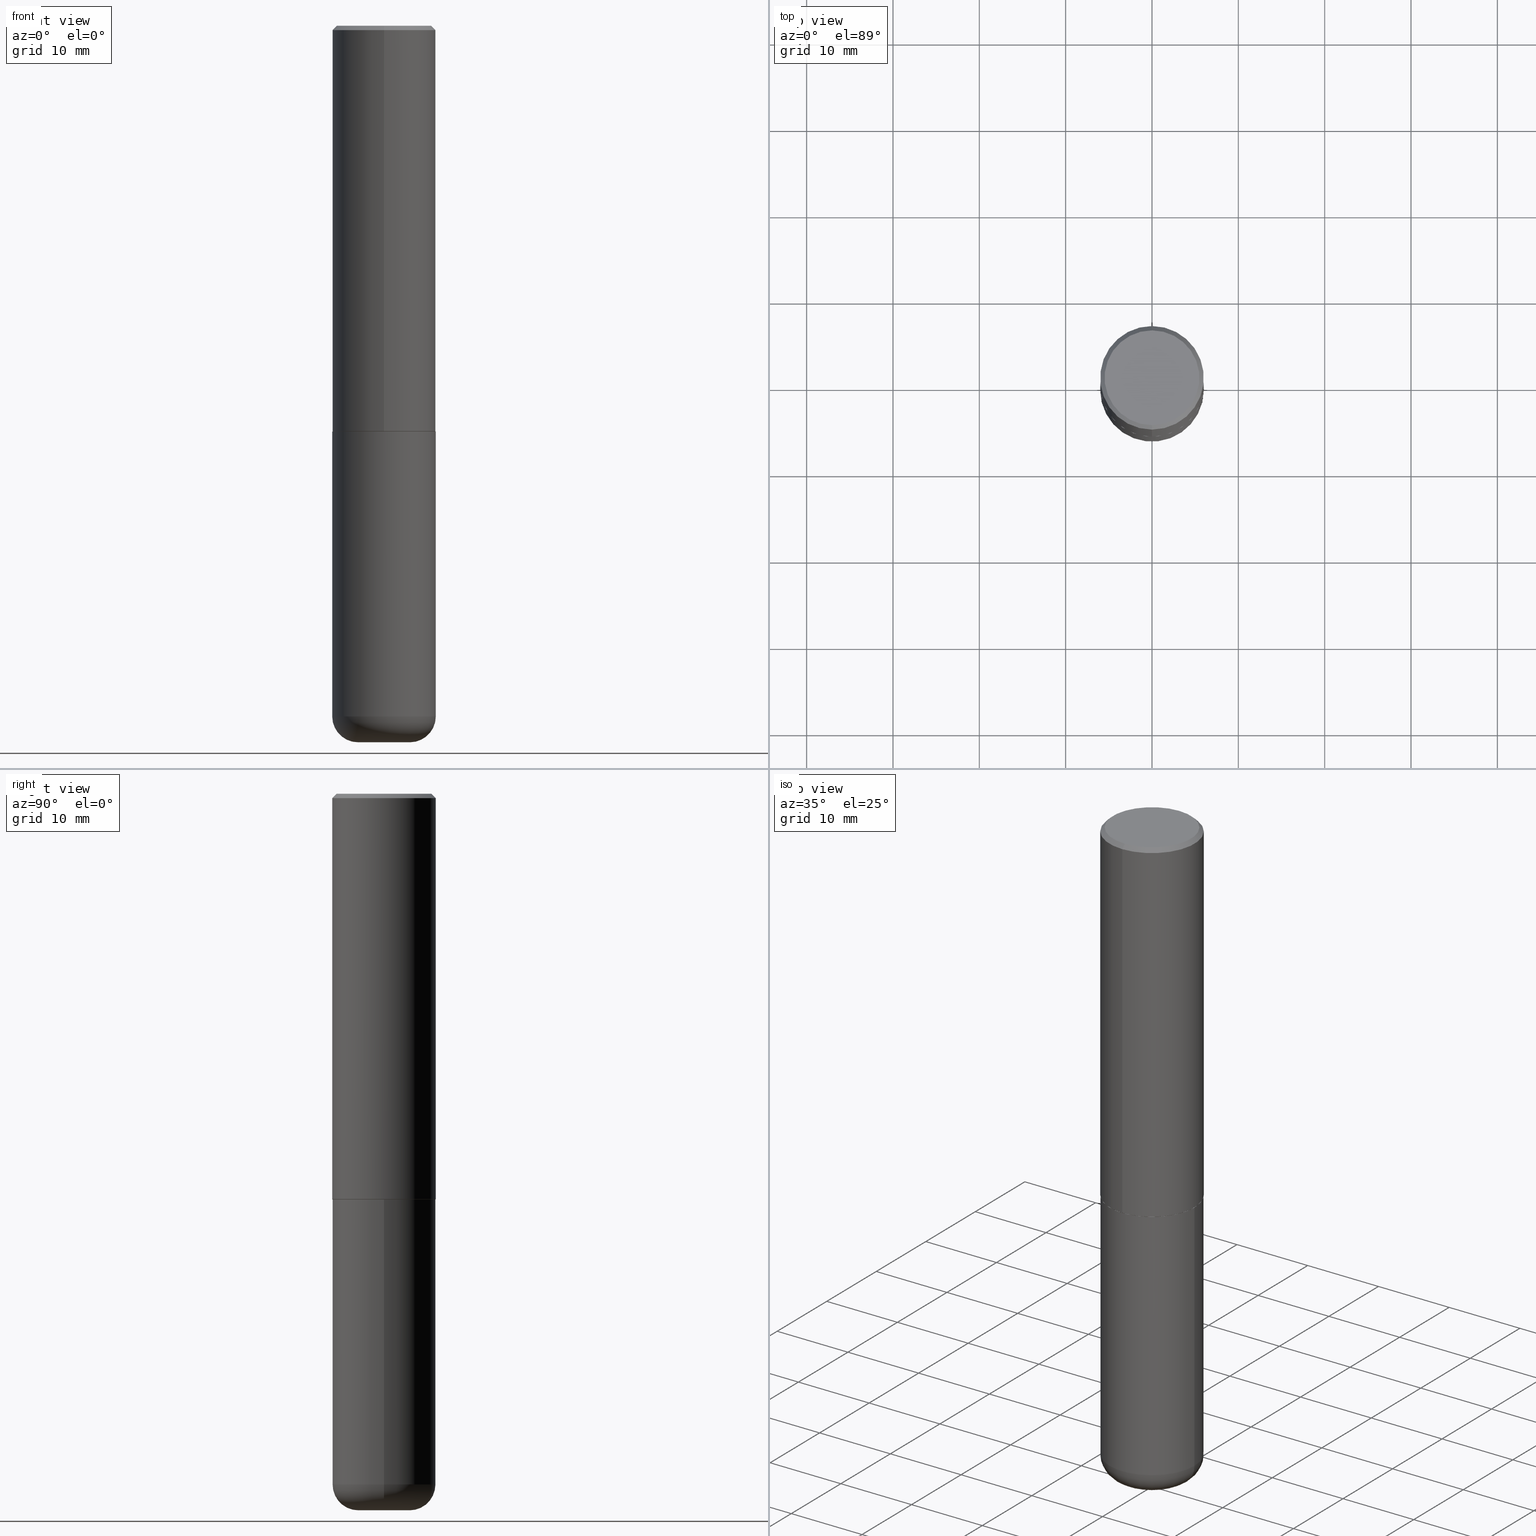
[diagram: canonical four-view strip — front | top / right | iso, engineering-drawing reading convention]
A machine part, canonical four-view strip (front | top / right | iso — engineering-drawing reading convention). The complete STEP part file that produces these views, byte-faithful:
ISO-10303-21;
HEADER;
FILE_DESCRIPTION (( 'STEP AP203' ),
    '1' );
FILE_NAME ('47557.STEP',
    '2024-03-06T11:07:08',
    ( '' ),
    ( '' ),
    'SwSTEP 2.0',
    'SolidWorks 2023',
    '' );
FILE_SCHEMA (( 'CONFIG_CONTROL_DESIGN' ));
ENDSEC;

DATA;
#1 = CALENDAR_DATE ( 2024, 6, 3 ) ;
#2 = EDGE_CURVE ( 'NONE', #65, #227, #183, .T. ) ;
#3 = LINE ( 'NONE', #55, #395 ) ;
#4 = PERSON_AND_ORGANIZATION_ROLE ( 'classification_officer' ) ;
#5 = DIRECTION ( 'NONE',  ( 1.000000000000000000, -6.982962677686272233E-15, 0.000000000000000000 ) ) ;
#6 = AXIS2_PLACEMENT_3D ( 'NONE', #404, #75, #399 ) ;
#7 = SECURITY_CLASSIFICATION ( '', '', #37 ) ;
#8 = APPROVAL_DATE_TIME ( #407, #292 ) ;
#9 = ADVANCED_FACE ( 'NONE', ( #106 ), #69, .T. ) ;
#10 = PLANE ( 'NONE',  #110 ) ;
#11 = APPROVAL ( #223, 'UNSPECIFIED' ) ;
#12 = PLANE ( 'NONE',  #111 ) ;
#13 = DIRECTION ( 'NONE',  ( -2.445371925614294233E-29, 3.491620077334691546E-15, 1.000000000000000000 ) ) ;
#14 = ORIENTED_EDGE ( 'NONE', *, *, #41, .F. ) ;
#15 = AXIS2_PLACEMENT_3D ( 'NONE', #109, #242, #204 ) ;
#16 = AXIS2_PLACEMENT_3D ( 'NONE', #177, #405, #19 ) ;
#17 = CARTESIAN_POINT ( 'NONE',  ( 1.678301941865357183E-15, 0.2362000000000001043, -8.247206622664545710E-16 ) ) ;
#18 = EDGE_CURVE ( 'NONE', #280, #138, #323, .T. ) ;
#19 = DIRECTION ( 'NONE',  ( 1.000000000000000000, -6.982962677686269077E-15, 0.000000000000000000 ) ) ;
#20 = CARTESIAN_POINT ( 'NONE',  ( 4.525095478964977394E-29, -6.460637069395357576E-15, -1.850400000000000267 ) ) ;
#21 = CARTESIAN_POINT ( 'NONE',  ( -8.038070963430480451E-45, 1.147714573189292330E-30, 3.287054569996039822E-16 ) ) ;
#22 = DIRECTION ( 'NONE',  ( -6.982962677686265133E-15, -1.000000000000000000, 3.469747663417773847E-15 ) ) ;
#23 = AXIS2_PLACEMENT_3D ( 'NONE', #360, #206, #80 ) ;
#24 = APPROVAL_STATUS ( 'not_yet_approved' ) ;
#25 = ORIENTED_EDGE ( 'NONE', *, *, #189, .T. ) ;
#26 = DIRECTION ( 'NONE',  ( 0.000000000000000000, 0.000000000000000000, 1.000000000000000000 ) ) ;
#27 = ORIENTED_EDGE ( 'NONE', *, *, #49, .T. ) ;
#28 = DIRECTION ( 'NONE',  ( -6.982962677686265922E-15, -1.000000000000000000, 3.491620077334691152E-15 ) ) ;
#29 = ORIENTED_EDGE ( 'NONE', *, *, #198, .F. ) ;
#30 = ORIENTED_EDGE ( 'NONE', *, *, #369, .T. ) ;
#31 = FACE_OUTER_BOUND ( 'NONE', #344, .T. ) ;
#32 = EDGE_LOOP ( 'NONE', ( #218, #89, #375, #320 ) ) ;
#33 = DIRECTION ( 'NONE',  ( -2.445468806185136597E-29, 3.491481338843145583E-15, 1.000000000000000000 ) ) ;
#34 = AXIS2_PLACEMENT_3D ( 'NONE', #295, #239, #5 ) ;
#35 =( GEOMETRIC_REPRESENTATION_CONTEXT ( 3 ) GLOBAL_UNCERTAINTY_ASSIGNED_CONTEXT ( ( #38 ) ) GLOBAL_UNIT_ASSIGNED_CONTEXT ( ( #150, #367, #308 ) ) REPRESENTATION_CONTEXT ( 'NONE', 'WORKASPACE' ) );
#36 = APPROVAL_ROLE ( '' ) ;
#37 = SECURITY_CLASSIFICATION_LEVEL ( 'unclassified' ) ;
#38 = UNCERTAINTY_MEASURE_WITH_UNIT (LENGTH_MEASURE( 1.000000000000000082E-05 ), #150, 'distance_accuracy_value', 'NONE');
#39 = COORDINATED_UNIVERSAL_TIME_OFFSET ( 5, 0, .BEHIND. ) ;
#40 = DIRECTION ( 'NONE',  ( 2.438088387897960049E-29, -3.491481338843145188E-15, -1.000000000000000000 ) ) ;
#41 = EDGE_CURVE ( 'NONE', #138, #58, #3, .T. ) ;
#42 = DIRECTION ( 'NONE',  ( -6.982962677686265133E-15, -1.000000000000000000, 3.484499991918703113E-15 ) ) ;
#43 = DATE_AND_TIME ( #231, #333 ) ;
#44 = AXIS2_PLACEMENT_3D ( 'NONE', #21, #342, #28 ) ;
#45 = DIRECTION ( 'NONE',  ( -2.445371925614294233E-29, 3.491620077334691546E-15, 1.000000000000000000 ) ) ;
#46 = DIRECTION ( 'NONE',  ( -6.982962677686265922E-15, -1.000000000000000000, 3.487819265831411744E-15 ) ) ;
#47 = DIRECTION ( 'NONE',  ( -6.982962677686265133E-15, -1.000000000000000000, 3.484499991918703113E-15 ) ) ;
#48 = DIRECTION ( 'NONE',  ( 1.000000000000000000, -6.982962677686263555E-15, 4.883557194083111780E-29 ) ) ;
#49 = EDGE_CURVE ( 'NONE', #315, #219, #217, .T. ) ;
#50 = DATE_TIME_ROLE ( 'creation_date' ) ;
#51 = AXIS2_PLACEMENT_3D ( 'NONE', #296, #136, #300 ) ;
#52 = EDGE_CURVE ( 'NONE', #122, #408, #169, .T. ) ;
#53 = LENGTH_MEASURE_WITH_UNIT ( LENGTH_MEASURE( 0.02539999999999999897 ), #403 );
#54 = DIRECTION ( 'NONE',  ( -6.982962677686265133E-15, -1.000000000000000000, 3.484499991918703113E-15 ) ) ;
#55 = CARTESIAN_POINT ( 'NONE',  ( -1.620449627073635079E-15, -0.2362000000000000766, -0.01999999999999922673 ) ) ;
#56 = AXIS2_PLACEMENT_3D ( 'NONE', #400, #142, #212 ) ;
#57 = CC_DESIGN_DATE_AND_TIME_ASSIGNMENT ( #234, #165, ( #7 ) ) ;
#58 = VERTEX_POINT ( 'NONE', #365 ) ;
#59 = DIRECTION ( 'NONE',  ( 5.024295867787719235E-15, 0.7071067811865017205, 0.7071067811865933139 ) ) ;
#60 = ORIENTED_EDGE ( 'NONE', *, *, #232, .F. ) ;
#61 = ORIENTED_EDGE ( 'NONE', *, *, #228, .F. ) ;
#62 = DIRECTION ( 'NONE',  ( -2.445468806185136877E-29, 3.491481338843145188E-15, 1.000000000000000000 ) ) ;
#63 = AXIS2_PLACEMENT_3D ( 'NONE', #20, #145, #401 ) ;
#64 = TOROIDAL_SURFACE ( 'NONE', #297, 0.1180999999999999966, 0.1180999999999997607 ) ;
#65 = VERTEX_POINT ( 'NONE', #274 ) ;
#66 = AXIS2_PLACEMENT_3D ( 'NONE', #81, #139, #48 ) ;
#67 = DIRECTION ( 'NONE',  ( -2.445371925614294233E-29, 3.491620077334691546E-15, 1.000000000000000000 ) ) ;
#68 = PRODUCT_RELATED_PRODUCT_CATEGORY ( 'detail', '', ( #199 ) ) ;
#69 = CYLINDRICAL_SURFACE ( 'NONE', #229, 0.2362000000000001043 ) ;
#70 = APPROVAL_DATE_TIME ( #105, #11 ) ;
#71 = CARTESIAN_POINT ( 'NONE',  ( -1.642392821791764560E-15, -0.2352000000000064595, -1.850399999999999823 ) ) ;
#72 = CIRCLE ( 'NONE', #378, 0.2362000000000002153 ) ;
#73 = AXIS2_PLACEMENT_3D ( 'NONE', #108, #358, #257 ) ;
#74 = EDGE_CURVE ( 'NONE', #219, #122, #72, .T. ) ;
#75 = DIRECTION ( 'NONE',  ( -2.445371925614294233E-29, 3.491620077334691546E-15, 1.000000000000000000 ) ) ;
#76 = ADVANCED_FACE ( 'NONE', ( #278 ), #275, .T. ) ;
#77 = DIRECTION ( 'NONE',  ( 1.000000000000000000, -6.982962677686266711E-15, 4.876176775795936353E-29 ) ) ;
#78 = CARTESIAN_POINT ( 'NONE',  ( 7.991058417971169471E-29, -1.140911357093774486E-14, -3.267699999999999605 ) ) ;
#79 = MANIFOLD_SOLID_BREP ( 'Body-Move/Copy2[2]', #140 ) ;
#80 = DIRECTION ( 'NONE',  ( -6.982962677686265133E-15, -1.000000000000000000, 3.469747663417773847E-15 ) ) ;
#81 = CARTESIAN_POINT ( 'NONE',  ( 7.702248551960706711E-29, -1.099676962482037231E-14, -3.149600000000000399 ) ) ;
#82 = CONICAL_SURFACE ( 'NONE', #246, 0.2351999999999999924, 0.7853981633973801113 ) ;
#83 = CONICAL_SURFACE ( 'NONE', #51, 0.2361999999999999933, 0.7853981633974479459 ) ;
#84 = DIRECTION ( 'NONE',  ( 1.000000000000000000, 0.000000000000000000, 0.000000000000000000 ) ) ;
#85 = CARTESIAN_POINT ( 'NONE',  ( 1.678301941865380454E-15, 0.2361999999999937760, -1.849400000000001043 ) ) ;
#86 = PERSON_AND_ORGANIZATION_ROLE ( 'design_owner' ) ;
#87 = ORIENTED_EDGE ( 'NONE', *, *, #348, .T. ) ;
#88 = LOCAL_TIME ( 6, 7, 8.000000000000000000, #250 ) ;
#89 = ORIENTED_EDGE ( 'NONE', *, *, #52, .T. ) ;
#90 = CARTESIAN_POINT ( 'NONE',  ( 1.854752379248561175E-28, 3.708345682062618425E-15, -3.267699999999999605 ) ) ;
#91 = CARTESIAN_POINT ( 'NONE',  ( 0.000000000000000000, 0.000000000000000000, 0.000000000000000000 ) ) ;
#92 = ORIENTED_EDGE ( 'NONE', *, *, #143, .T. ) ;
#93 = VERTEX_POINT ( 'NONE', #361 ) ;
#94 = VECTOR ( 'NONE', #244, 39.37007874015748143 ) ;
#95 = EDGE_LOOP ( 'NONE', ( #263, #162, #288, #376 ) ) ;
#96 = EDGE_CURVE ( 'NONE', #230, #128, #207, .T. ) ;
#97 = CARTESIAN_POINT ( 'NONE',  ( 7.702248551960706711E-29, -1.099676962482037231E-14, -3.149600000000000399 ) ) ;
#98 = EDGE_LOOP ( 'NONE', ( #282, #87 ) ) ;
#99 = CARTESIAN_POINT ( 'NONE',  ( -8.038070963430480451E-45, 1.147714573189292330E-30, 3.287054569996039822E-16 ) ) ;
#100 = ORIENTED_EDGE ( 'NONE', *, *, #329, .F. ) ;
#101 = CIRCLE ( 'NONE', #379, 0.2362000000000000210 ) ;
#102 = CALENDAR_DATE ( 2024, 6, 3 ) ;
#103 = CARTESIAN_POINT ( 'NONE',  ( 0.1180999999999999966, -1.182145751705512057E-14, -3.149600000000000399 ) ) ;
#104 = EDGE_CURVE ( 'NONE', #408, #58, #312, .T. ) ;
#105 = DATE_AND_TIME ( #1, #236 ) ;
#106 = FACE_OUTER_BOUND ( 'NONE', #126, .T. ) ;
#107 = FACE_OUTER_BOUND ( 'NONE', #412, .T. ) ;
#108 = CARTESIAN_POINT ( 'NONE',  ( 1.509716530915768154E-15, 0.2161999999999996425, -5.905355322199570835E-16 ) ) ;
#109 = CARTESIAN_POINT ( 'NONE',  ( 4.524916211156691287E-29, -6.460893791100115503E-15, -1.850400000000000489 ) ) ;
#110 = AXIS2_PLACEMENT_3D ( 'NONE', #137, #249, #393 ) ;
#111 = AXIS2_PLACEMENT_3D ( 'NONE', #273, #40, #240 ) ;
#112 = DIRECTION ( 'NONE',  ( -2.445371925614294233E-29, 3.491620077334691546E-15, 1.000000000000000000 ) ) ;
#113 = DIRECTION ( 'NONE',  ( -4.851104656540961908E-15, -0.7071067811865496822, -0.7071067811865453523 ) ) ;
#114 = CC_DESIGN_PERSON_AND_ORGANIZATION_ASSIGNMENT ( #385, #197, ( #247 ) ) ;
#115 = DIRECTION ( 'NONE',  ( -2.445371925614294233E-29, 3.491620077334691546E-15, 1.000000000000000000 ) ) ;
#116 = APPLICATION_PROTOCOL_DEFINITION ( 'international standard', 'config_control_design', 1994, #213 ) ;
#117 = LINE ( 'NONE', #245, #353 ) ;
#118 = AXIS2_PLACEMENT_3D ( 'NONE', #388, #112, #47 ) ;
#119 = CARTESIAN_POINT ( 'NONE',  ( -1.551844647095918761E-15, -0.2161999999999996425, 1.083593717719362934E-15 ) ) ;
#120 = APPROVAL_ROLE ( '' ) ;
#121 = ORIENTED_EDGE ( 'NONE', *, *, #329, .T. ) ;
#122 = VERTEX_POINT ( 'NONE', #85 ) ;
#123 = DIRECTION ( 'NONE',  ( 1.000000000000000000, -6.982962677686264344E-15, 0.000000000000000000 ) ) ;
#124 = AXIS2_PLACEMENT_3D ( 'NONE', #78, #209, #173 ) ;
#125 = APPROVAL_PERSON_ORGANIZATION ( #193, #11, #238 ) ;
#126 = EDGE_LOOP ( 'NONE', ( #192, #317, #340, #188 ) ) ;
#127 = ORIENTED_EDGE ( 'NONE', *, *, #18, .F. ) ;
#128 = VERTEX_POINT ( 'NONE', #243 ) ;
#129 = CC_DESIGN_PERSON_AND_ORGANIZATION_ASSIGNMENT ( #153, #86, ( #199 ) ) ;
#130 = DIRECTION ( 'NONE',  ( 1.000000000000000000, -6.982962677686263555E-15, 4.883557194083111780E-29 ) ) ;
#131 = AXIS2_PLACEMENT_3D ( 'NONE', #291, #416, #262 ) ;
#132 = CC_DESIGN_PERSON_AND_ORGANIZATION_ASSIGNMENT ( #389, #415, ( #247 ) ) ;
#133 = PRODUCT_DEFINITION_SHAPE ( 'NONE', 'NONE',  #356 ) ;
#134 = PERSON_AND_ORGANIZATION ( #233, #272 ) ;
#135 = VECTOR ( 'NONE', #332, 39.37007874015748143 ) ;
#136 = DIRECTION ( 'NONE',  ( 2.445371925614294233E-29, -3.491620077334691546E-15, -1.000000000000000000 ) ) ;
#137 = CARTESIAN_POINT ( 'NONE',  ( 4.524916211156691287E-29, -6.460893791100115503E-15, -1.850400000000000489 ) ) ;
#138 = VERTEX_POINT ( 'NONE', #119 ) ;
#139 = DIRECTION ( 'NONE',  ( -2.445468806185136597E-29, 3.491481338843145583E-15, 1.000000000000000000 ) ) ;
#140 = CLOSED_SHELL ( 'NONE', ( #318, #76, #307, #237, #9, #182, #146, #337 ) ) ;
#141 = CC_DESIGN_APPROVAL ( #292, ( #356 ) ) ;
#142 = DIRECTION ( 'NONE',  ( 7.105427357601001859E-15, 1.000000000000000000, -3.491481338843145583E-15 ) ) ;
#143 = EDGE_CURVE ( 'NONE', #65, #230, #235, .T. ) ;
#144 = CARTESIAN_POINT ( 'NONE',  ( 1.649375784469496525E-15, 0.2361999999999999378, -0.02000000000000087472 ) ) ;
#145 = DIRECTION ( 'NONE',  ( -2.445468806185136597E-29, 3.491481338843145583E-15, 1.000000000000000000 ) ) ;
#146 = ADVANCED_FACE ( 'NONE', ( #359 ), #10, .F. ) ;
#147 = LINE ( 'NONE', #316, #279 ) ;
#148 = DIRECTION ( 'NONE',  ( -2.445371925614294233E-29, 3.491620077334691546E-15, 1.000000000000000000 ) ) ;
#149 = CONICAL_SURFACE ( 'NONE', #205, 0.2361999999999999933, 0.7853981633974479459 ) ;
#150 =( CONVERSION_BASED_UNIT ( 'INCH', #53 ) LENGTH_UNIT ( ) NAMED_UNIT ( #397 ) );
#151 = EDGE_LOOP ( 'NONE', ( #166, #121, #27, #346 ) ) ;
#152 = EDGE_CURVE ( 'NONE', #315, #93, #214, .T. ) ;
#153 = PERSON_AND_ORGANIZATION ( #233, #272 ) ;
#154 = EDGE_LOOP ( 'NONE', ( #314, #100 ) ) ;
#155 = EDGE_CURVE ( 'NONE', #219, #58, #368, .T. ) ;
#156 = EDGE_LOOP ( 'NONE', ( #159, #194, #284, #251 ) ) ;
#157 = CC_DESIGN_APPROVAL ( #374, ( #7 ) ) ;
#158 = ADVANCED_FACE ( 'NONE', ( #171 ), #255, .T. ) ;
#159 = ORIENTED_EDGE ( 'NONE', *, *, #96, .F. ) ;
#160 = ORIENTED_EDGE ( 'NONE', *, *, #369, .F. ) ;
#161 = CARTESIAN_POINT ( 'NONE',  ( 0.000000000000000000, 0.000000000000000000, 0.000000000000000000 ) ) ;
#162 = ORIENTED_EDGE ( 'NONE', *, *, #383, .T. ) ;
#163 = CARTESIAN_POINT ( 'NONE',  ( 0.2361999999999999933, -8.110012853864854101E-15, -1.850400000000000267 ) ) ;
#164 = COORDINATED_UNIVERSAL_TIME_OFFSET ( 5, 0, .BEHIND. ) ;
#165 = DATE_TIME_ROLE ( 'classification_date' ) ;
#166 = ORIENTED_EDGE ( 'NONE', *, *, #383, .F. ) ;
#167 = AXIS2_PLACEMENT_3D ( 'NONE', #330, #45, #42 ) ;
#168 = PERSON_AND_ORGANIZATION ( #233, #272 ) ;
#169 = LINE ( 'NONE', #17, #135 ) ;
#170 = DIRECTION ( 'NONE',  ( -2.445468806185136597E-29, 3.491481338843145583E-15, 1.000000000000000000 ) ) ;
#171 = FACE_OUTER_BOUND ( 'NONE', #259, .T. ) ;
#172 = APPLICATION_CONTEXT ( 'configuration controlled 3d designs of mechanical parts and assemblies' ) ;
#173 = DIRECTION ( 'NONE',  ( 1.000000000000000000, -6.982962677686272233E-15, 0.000000000000000000 ) ) ;
#174 = LOCAL_TIME ( 6, 7, 8.000000000000000000, #380 ) ;
#175 = CARTESIAN_POINT ( 'NONE',  ( 0.2361999999999998823, -1.264614540928986883E-14, -3.149600000000000399 ) ) ;
#176 = EDGE_CURVE ( 'NONE', #227, #65, #302, .T. ) ;
#177 = CARTESIAN_POINT ( 'NONE',  ( 4.525095478964977394E-29, -6.460637069395357576E-15, -1.850400000000000267 ) ) ;
#178 = DIRECTION ( 'NONE',  ( -2.445468806185136877E-29, 3.491481338843145188E-15, 1.000000000000000000 ) ) ;
#179 = CYLINDRICAL_SURFACE ( 'NONE', #363, 0.2361999999999999933 ) ;
#180 = APPLICATION_PROTOCOL_DEFINITION ( 'international standard', 'config_control_design', 1994, #172 ) ;
#181 = DIRECTION ( 'NONE',  ( -2.445468806185136597E-29, 3.491481338843145583E-15, 1.000000000000000000 ) ) ;
#182 = ADVANCED_FACE ( 'NONE', ( #304 ), #82, .T. ) ;
#183 = CIRCLE ( 'NONE', #34, 0.1181000000000000105 ) ;
#184 = CIRCLE ( 'NONE', #285, 0.2361999999999999933 ) ;
#185 = CARTESIAN_POINT ( 'NONE',  ( 0.000000000000000000, 0.000000000000000000, 0.000000000000000000 ) ) ;
#186 = EDGE_LOOP ( 'NONE', ( #14, #127, #349, #345 ) ) ;
#187 = VERTEX_POINT ( 'NONE', #175 ) ;
#188 = ORIENTED_EDGE ( 'NONE', *, *, #104, .F. ) ;
#189 = EDGE_CURVE ( 'NONE', #128, #258, #409, .T. ) ;
#190 = CC_DESIGN_APPROVAL ( #11, ( #247 ) ) ;
#191 = CARTESIAN_POINT ( 'NONE',  ( -1.649375784469452349E-15, -0.2362000000000066546, -1.849399999999999489 ) ) ;
#192 = ORIENTED_EDGE ( 'NONE', *, *, #52, .F. ) ;
#193 = PERSON_AND_ORGANIZATION ( #233, #272 ) ;
#194 = ORIENTED_EDGE ( 'NONE', *, *, #228, .T. ) ;
#195 = CYLINDRICAL_SURFACE ( 'NONE', #347, 0.2361999999999999933 ) ;
#196 = DIRECTION ( 'NONE',  ( -2.445371925614294233E-29, 3.491620077334691546E-15, 1.000000000000000000 ) ) ;
#197 = PERSON_AND_ORGANIZATION_ROLE ( 'design_supplier' ) ;
#198 = EDGE_CURVE ( 'NONE', #187, #258, #117, .T. ) ;
#199 = PRODUCT ( '47557', '47557', '', ( #335 ) ) ;
#200 = SHAPE_DEFINITION_REPRESENTATION ( #133, #210 ) ;
#201 = DIRECTION ( 'NONE',  ( -6.982962677686266711E-15, -1.000000000000000000, 3.491481338843145583E-15 ) ) ;
#202 = COORDINATED_UNIVERSAL_TIME_OFFSET ( 5, 0, .BEHIND. ) ;
#203 = VECTOR ( 'NONE', #178, 39.37007874015748143 ) ;
#204 = DIRECTION ( 'NONE',  ( -6.982962677686265133E-15, -1.000000000000000000, 3.484499991918703113E-15 ) ) ;
#205 = AXIS2_PLACEMENT_3D ( 'NONE', #220, #341, #396 ) ;
#206 = DIRECTION ( 'NONE',  ( -2.445371925614294233E-29, 3.491620077334691546E-15, 1.000000000000000000 ) ) ;
#207 = LINE ( 'NONE', #331, #203 ) ;
#208 = ORIENTED_EDGE ( 'NONE', *, *, #41, .T. ) ;
#209 = DIRECTION ( 'NONE',  ( -2.445468806185136597E-29, 3.491481338843145583E-15, 1.000000000000000000 ) ) ;
#210 = ADVANCED_BREP_SHAPE_REPRESENTATION ( '47557', ( #224, #79, #324 ), #35 ) ;
#211 = FACE_OUTER_BOUND ( 'NONE', #298, .T. ) ;
#212 = DIRECTION ( 'NONE',  ( -1.000000000000000000, 7.105427357601001859E-15, 0.000000000000000000 ) ) ;
#213 = APPLICATION_CONTEXT ( 'configuration controlled 3d designs of mechanical parts and assemblies' ) ;
#214 = CIRCLE ( 'NONE', #15, 0.2351999999999999924 ) ;
#215 = ADVANCED_FACE ( 'NONE', ( #294 ), #195, .T. ) ;
#216 = DIRECTION ( 'NONE',  ( 4.937700262164545676E-15, 0.7071067811865447972, -0.7071067811865502373 ) ) ;
#217 = LINE ( 'NONE', #309, #94 ) ;
#218 = ORIENTED_EDGE ( 'NONE', *, *, #74, .T. ) ;
#219 = VERTEX_POINT ( 'NONE', #191 ) ;
#220 = CARTESIAN_POINT ( 'NONE',  ( 4.890743851228601113E-31, -6.983240154669400497E-17, -0.02000000000000005246 ) ) ;
#221 = CIRCLE ( 'NONE', #16, 0.2361999999999999933 ) ;
#222 = ORIENTED_EDGE ( 'NONE', *, *, #176, .T. ) ;
#223 = APPROVAL_STATUS ( 'not_yet_approved' ) ;
#224 = MANIFOLD_SOLID_BREP ( 'Body-Move/Copy2[1]', #402 ) ;
#225 = ORIENTED_EDGE ( 'NONE', *, *, #176, .F. ) ;
#226 = ADVANCED_FACE ( 'NONE', ( #31 ), #64, .T. ) ;
#227 = VERTEX_POINT ( 'NONE', #321 ) ;
#228 = EDGE_CURVE ( 'NONE', #230, #187, #293, .T. ) ;
#229 = AXIS2_PLACEMENT_3D ( 'NONE', #268, #196, #382 ) ;
#230 = VERTEX_POINT ( 'NONE', #381 ) ;
#231 = CALENDAR_DATE ( 2024, 6, 3 ) ;
#232 = EDGE_CURVE ( 'NONE', #187, #230, #101, .T. ) ;
#233 = PERSON ( 'UNSPECIFIED', 'UNSPECIFIED', 'UNSPECIFIED', ('UNSPECIFIED'), ('UNSPECIFIED'), ('UNSPECIFIED') ) ;
#234 = DATE_AND_TIME ( #326, #174 ) ;
#235 = CIRCLE ( 'NONE', #56, 0.1180999999999997607 ) ;
#236 = LOCAL_TIME ( 6, 7, 8.000000000000000000, #202 ) ;
#237 = ADVANCED_FACE ( 'NONE', ( #252 ), #149, .T. ) ;
#238 = APPROVAL_ROLE ( '' ) ;
#239 = DIRECTION ( 'NONE',  ( -2.445468806185136597E-29, 3.491481338843145583E-15, 1.000000000000000000 ) ) ;
#240 = DIRECTION ( 'NONE',  ( -1.000000000000000000, 6.982962677686265922E-15, -4.876176775795935793E-29 ) ) ;
#241 = AXIS2_PLACEMENT_3D ( 'NONE', #103, #201, #327 ) ;
#242 = DIRECTION ( 'NONE',  ( -2.445371925614294233E-29, 3.491620077334691546E-15, 1.000000000000000000 ) ) ;
#243 = CARTESIAN_POINT ( 'NONE',  ( -0.2361999999999999933, -7.050401405242508548E-15, -1.850400000000000267 ) ) ;
#244 = DIRECTION ( 'NONE',  ( -4.937700262164211199E-15, -0.7071067811864968355, 0.7071067811865981989 ) ) ;
#245 = CARTESIAN_POINT ( 'NONE',  ( 0.2361999999999999933, -1.649375784469496131E-15, 1.151752954443000088E-29 ) ) ;
#246 = AXIS2_PLACEMENT_3D ( 'NONE', #306, #115, #54 ) ;
#247 = PRODUCT_DEFINITION_FORMATION_WITH_SPECIFIED_SOURCE ( 'ANY', '', #199, .NOT_KNOWN. ) ;
#248 = FACE_OUTER_BOUND ( 'NONE', #351, .T. ) ;
#249 = DIRECTION ( 'NONE',  ( -2.445371925614293953E-29, 3.491620077334691546E-15, 1.000000000000000000 ) ) ;
#250 = COORDINATED_UNIVERSAL_TIME_OFFSET ( 5, 0, .BEHIND. ) ;
#251 = ORIENTED_EDGE ( 'NONE', *, *, #189, .F. ) ;
#252 = FACE_OUTER_BOUND ( 'NONE', #186, .T. ) ;
#253 = CARTESIAN_POINT ( 'NONE',  ( 4.890743851228601113E-31, -6.983240154669400497E-17, -0.02000000000000005246 ) ) ;
#254 = ORIENTED_EDGE ( 'NONE', *, *, #348, .F. ) ;
#255 = TOROIDAL_SURFACE ( 'NONE', #66, 0.1180999999999999966, 0.1180999999999997607 ) ;
#256 = VECTOR ( 'NONE', #216, 39.37007874015748143 ) ;
#257 = DIRECTION ( 'NONE',  ( 6.982962677686265922E-15, 1.000000000000000000, -3.491620077334691546E-15 ) ) ;
#258 = VERTEX_POINT ( 'NONE', #163 ) ;
#259 = EDGE_LOOP ( 'NONE', ( #370, #271, #414, #61 ) ) ;
#260 = ORIENTED_EDGE ( 'NONE', *, *, #362, .T. ) ;
#261 = CIRCLE ( 'NONE', #241, 0.1180999999999997607 ) ;
#262 = DIRECTION ( 'NONE',  ( 1.000000000000000000, -6.982962677686264344E-15, 0.000000000000000000 ) ) ;
#263 = ORIENTED_EDGE ( 'NONE', *, *, #152, .T. ) ;
#264 = APPROVAL_DATE_TIME ( #43, #374 ) ;
#265 = VECTOR ( 'NONE', #13, 39.37007874015748143 ) ;
#266 = LOCAL_TIME ( 6, 7, 8.000000000000000000, #39 ) ;
#267 = ADVANCED_FACE ( 'NONE', ( #107 ), #179, .T. ) ;
#268 = CARTESIAN_POINT ( 'NONE',  ( 0.000000000000000000, 0.000000000000000000, 0.000000000000000000 ) ) ;
#269 = CARTESIAN_POINT ( 'NONE',  ( 1.579546157692632438E-15, 0.2161999999999996425, -4.261828037201549199E-16 ) ) ;
#270 = CARTESIAN_POINT ( 'NONE',  ( 4.890743851228601113E-31, -6.983240154669400497E-17, -0.02000000000000005246 ) ) ;
#271 = ORIENTED_EDGE ( 'NONE', *, *, #2, .T. ) ;
#272 = ORGANIZATION ( 'UNSPECIFIED', 'UNSPECIFIED', '' ) ;
#273 = CARTESIAN_POINT ( 'NONE',  ( 4.525095478964977394E-29, -6.460637069395357576E-15, -1.850400000000000267 ) ) ;
#274 = CARTESIAN_POINT ( 'NONE',  ( -0.1181000000000000383, -9.944215141480041685E-15, -3.267699999999999605 ) ) ;
#275 = CYLINDRICAL_SURFACE ( 'NONE', #6, 0.2362000000000001043 ) ;
#276 = CC_DESIGN_DATE_AND_TIME_ASSIGNMENT ( #355, #50, ( #356 ) ) ;
#277 = PLANE ( 'NONE',  #418 ) ;
#278 = FACE_OUTER_BOUND ( 'NONE', #32, .T. ) ;
#279 = VECTOR ( 'NONE', #59, 39.37007874015748143 ) ;
#280 = VERTEX_POINT ( 'NONE', #269 ) ;
#281 = CALENDAR_DATE ( 2024, 6, 3 ) ;
#282 = ORIENTED_EDGE ( 'NONE', *, *, #18, .T. ) ;
#283 = DIRECTION ( 'NONE',  ( -1.000000000000000000, 6.982962677686265922E-15, -4.876176775795935793E-29 ) ) ;
#284 = ORIENTED_EDGE ( 'NONE', *, *, #198, .T. ) ;
#285 = AXIS2_PLACEMENT_3D ( 'NONE', #253, #373, #305 ) ;
#286 = EDGE_CURVE ( 'NONE', #122, #219, #313, .T. ) ;
#287 = ADVANCED_FACE ( 'NONE', ( #211 ), #12, .F. ) ;
#288 = ORIENTED_EDGE ( 'NONE', *, *, #74, .F. ) ;
#289 = DESIGN_CONTEXT ( 'detailed design', #172, 'design' ) ;
#290 = CARTESIAN_POINT ( 'NONE',  ( 7.702248551960706711E-29, -1.099676962482037231E-14, -3.149600000000000399 ) ) ;
#291 = CARTESIAN_POINT ( 'NONE',  ( 7.702248551960706711E-29, -1.099676962482037231E-14, -3.149600000000000399 ) ) ;
#292 = APPROVAL ( #24, 'UNSPECIFIED' ) ;
#293 = CIRCLE ( 'NONE', #131, 0.2362000000000000210 ) ;
#294 = FACE_OUTER_BOUND ( 'NONE', #156, .T. ) ;
#295 = CARTESIAN_POINT ( 'NONE',  ( 7.991058417971169471E-29, -1.140911357093774486E-14, -3.267699999999999605 ) ) ;
#296 = CARTESIAN_POINT ( 'NONE',  ( 4.890743851228601113E-31, -6.983240154669400497E-17, -0.02000000000000005246 ) ) ;
#297 = AXIS2_PLACEMENT_3D ( 'NONE', #290, #33, #130 ) ;
#298 = EDGE_LOOP ( 'NONE', ( #30, #25 ) ) ;
#299 = FACE_OUTER_BOUND ( 'NONE', #98, .T. ) ;
#300 = DIRECTION ( 'NONE',  ( 6.982962677686265922E-15, 1.000000000000000000, -3.487819265831411744E-15 ) ) ;
#301 = CARTESIAN_POINT ( 'NONE',  ( 4.522470839231075964E-29, -6.457402171022779437E-15, -1.849400000000000155 ) ) ;
#302 = CIRCLE ( 'NONE', #124, 0.1181000000000000105 ) ;
#303 = APPROVAL_PERSON_ORGANIZATION ( #310, #292, #120 ) ;
#304 = FACE_OUTER_BOUND ( 'NONE', #151, .T. ) ;
#305 = DIRECTION ( 'NONE',  ( -6.982962677686265922E-15, -1.000000000000000000, 3.487819265831411744E-15 ) ) ;
#306 = CARTESIAN_POINT ( 'NONE',  ( 4.524916211156691287E-29, -6.460893791100115503E-15, -1.850400000000000489 ) ) ;
#307 = ADVANCED_FACE ( 'NONE', ( #391 ), #83, .T. ) ;
#308 =( NAMED_UNIT ( * ) SI_UNIT ( $, .STERADIAN. ) SOLID_ANGLE_UNIT ( ) );
#309 = CARTESIAN_POINT ( 'NONE',  ( -1.642392821791764560E-15, -0.2352000000000064595, -1.850399999999999823 ) ) ;
#310 = PERSON_AND_ORGANIZATION ( #233, #272 ) ;
#311 = DIRECTION ( 'NONE',  ( 1.000000000000000000, -6.982962677686266711E-15, 4.876176775795936353E-29 ) ) ;
#312 = CIRCLE ( 'NONE', #417, 0.2361999999999999933 ) ;
#313 = CIRCLE ( 'NONE', #23, 0.2362000000000002153 ) ;
#314 = ORIENTED_EDGE ( 'NONE', *, *, #152, .F. ) ;
#315 = VERTEX_POINT ( 'NONE', #71 ) ;
#316 = CARTESIAN_POINT ( 'NONE',  ( 1.671196514507800548E-15, 0.2351999999999935531, -1.850400000000001377 ) ) ;
#317 = ORIENTED_EDGE ( 'NONE', *, *, #286, .T. ) ;
#318 = ADVANCED_FACE ( 'NONE', ( #398 ), #339, .T. ) ;
#319 = ORIENTED_EDGE ( 'NONE', *, *, #232, .T. ) ;
#320 = ORIENTED_EDGE ( 'NONE', *, *, #155, .F. ) ;
#321 = CARTESIAN_POINT ( 'NONE',  ( 0.1181000000000000105, -1.223380146317249313E-14, -3.267699999999999605 ) ) ;
#322 = EDGE_CURVE ( 'NONE', #227, #187, #261, .T. ) ;
#323 = CIRCLE ( 'NONE', #384, 0.2161999999999996425 ) ;
#324 = AXIS2_PLACEMENT_3D ( 'NONE', #185, #26, #84 ) ;
#325 = DIRECTION ( 'NONE',  ( -6.982962677686265922E-15, -1.000000000000000000, 3.491620077334691152E-15 ) ) ;
#326 = CALENDAR_DATE ( 2024, 6, 3 ) ;
#327 = DIRECTION ( 'NONE',  ( 1.000000000000000000, -6.982962677686270655E-15, 0.000000000000000000 ) ) ;
#328 = APPROVAL_STATUS ( 'not_yet_approved' ) ;
#329 = EDGE_CURVE ( 'NONE', #93, #315, #371, .T. ) ;
#330 = CARTESIAN_POINT ( 'NONE',  ( 4.524916211156691287E-29, -6.460893791100115503E-15, -1.850400000000000489 ) ) ;
#331 = CARTESIAN_POINT ( 'NONE',  ( -0.2361999999999999933, 1.678301941865356591E-15, -1.161852468318208757E-29 ) ) ;
#332 = DIRECTION ( 'NONE',  ( -2.445371925614294233E-29, 3.491620077334691546E-15, 1.000000000000000000 ) ) ;
#333 = LOCAL_TIME ( 6, 7, 8.000000000000000000, #164 ) ;
#334 = CARTESIAN_POINT ( 'NONE',  ( -1.649375784469496722E-15, -0.2362000000000001043, 8.247206622664545710E-16 ) ) ;
#335 = MECHANICAL_CONTEXT ( 'NONE', #213, 'mechanical' ) ;
#336 = DIRECTION ( 'NONE',  ( -2.445371925614294233E-29, 3.491620077334691546E-15, 1.000000000000000000 ) ) ;
#337 = ADVANCED_FACE ( 'NONE', ( #299 ), #392, .F. ) ;
#338 = CARTESIAN_POINT ( 'NONE',  ( 1.649375784469496525E-15, 0.2361999999999999378, -0.02000000000000087472 ) ) ;
#339 = CONICAL_SURFACE ( 'NONE', #118, 0.2351999999999999924, 0.7853981633973801113 ) ;
#340 = ORIENTED_EDGE ( 'NONE', *, *, #155, .T. ) ;
#341 = DIRECTION ( 'NONE',  ( 2.445371925614294233E-29, -3.491620077334691546E-15, -1.000000000000000000 ) ) ;
#342 = DIRECTION ( 'NONE',  ( -2.445371925614294233E-29, 3.491620077334691546E-15, 1.000000000000000000 ) ) ;
#343 = CC_DESIGN_PERSON_AND_ORGANIZATION_ASSIGNMENT ( #168, #390, ( #356 ) ) ;
#344 = EDGE_LOOP ( 'NONE', ( #222, #92, #60, #413 ) ) ;
#345 = ORIENTED_EDGE ( 'NONE', *, *, #104, .T. ) ;
#346 = ORIENTED_EDGE ( 'NONE', *, *, #286, .F. ) ;
#347 = AXIS2_PLACEMENT_3D ( 'NONE', #161, #181, #311 ) ;
#348 = EDGE_CURVE ( 'NONE', #138, #280, #357, .T. ) ;
#349 = ORIENTED_EDGE ( 'NONE', *, *, #354, .T. ) ;
#350 = DIRECTION ( 'NONE',  ( -2.445468806185136597E-29, 3.491481338843145583E-15, 1.000000000000000000 ) ) ;
#351 = EDGE_LOOP ( 'NONE', ( #225, #406 ) ) ;
#352 = PERSON_AND_ORGANIZATION ( #233, #272 ) ;
#353 = VECTOR ( 'NONE', #62, 39.37007874015748143 ) ;
#354 = EDGE_CURVE ( 'NONE', #280, #408, #410, .T. ) ;
#355 = DATE_AND_TIME ( #102, #266 ) ;
#356 = PRODUCT_DEFINITION ( 'UNKNOWN', '', #247, #289 ) ;
#357 = CIRCLE ( 'NONE', #44, 0.2161999999999996425 ) ;
#358 = DIRECTION ( 'NONE',  ( 2.445371925614293953E-29, -3.491620077334691546E-15, -1.000000000000000000 ) ) ;
#359 = FACE_OUTER_BOUND ( 'NONE', #154, .T. ) ;
#360 = CARTESIAN_POINT ( 'NONE',  ( 4.522470839231075964E-29, -6.457402171022779437E-15, -1.849400000000000155 ) ) ;
#361 = CARTESIAN_POINT ( 'NONE',  ( 1.674749228186601644E-15, 0.2351999999999935531, -1.850400000000001377 ) ) ;
#362 = EDGE_CURVE ( 'NONE', #58, #408, #184, .T. ) ;
#363 = AXIS2_PLACEMENT_3D ( 'NONE', #91, #170, #77 ) ;
#364 = DIRECTION ( 'NONE',  ( 2.438088387897960049E-29, -3.491481338843145188E-15, -1.000000000000000000 ) ) ;
#365 = CARTESIAN_POINT ( 'NONE',  ( -1.620449627073635079E-15, -0.2362000000000000766, -0.01999999999999922673 ) ) ;
#366 = ADVANCED_FACE ( 'NONE', ( #248 ), #277, .T. ) ;
#367 =( NAMED_UNIT ( * ) PLANE_ANGLE_UNIT ( ) SI_UNIT ( $, .RADIAN. ) );
#368 = LINE ( 'NONE', #334, #265 ) ;
#369 = EDGE_CURVE ( 'NONE', #258, #128, #221, .T. ) ;
#370 = ORIENTED_EDGE ( 'NONE', *, *, #143, .F. ) ;
#371 = CIRCLE ( 'NONE', #167, 0.2351999999999999924 ) ;
#372 = ORIENTED_EDGE ( 'NONE', *, *, #96, .T. ) ;
#373 = DIRECTION ( 'NONE',  ( -2.445371925614294233E-29, 3.491620077334691546E-15, 1.000000000000000000 ) ) ;
#374 = APPROVAL ( #328, 'UNSPECIFIED' ) ;
#375 = ORIENTED_EDGE ( 'NONE', *, *, #362, .F. ) ;
#376 = ORIENTED_EDGE ( 'NONE', *, *, #49, .F. ) ;
#377 = ORIENTED_EDGE ( 'NONE', *, *, #354, .F. ) ;
#378 = AXIS2_PLACEMENT_3D ( 'NONE', #301, #336, #22 ) ;
#379 = AXIS2_PLACEMENT_3D ( 'NONE', #97, #350, #123 ) ;
#380 = COORDINATED_UNIVERSAL_TIME_OFFSET ( 5, 0, .BEHIND. ) ;
#381 = CARTESIAN_POINT ( 'NONE',  ( -0.2361999999999998823, -9.318467682955017493E-15, -3.149600000000000399 ) ) ;
#382 = DIRECTION ( 'NONE',  ( -6.982962677686265922E-15, -1.000000000000000000, 3.491620077334691941E-15 ) ) ;
#383 = EDGE_CURVE ( 'NONE', #93, #122, #147, .T. ) ;
#384 = AXIS2_PLACEMENT_3D ( 'NONE', #99, #67, #325 ) ;
#385 = PERSON_AND_ORGANIZATION ( #233, #272 ) ;
#386 = CC_DESIGN_SECURITY_CLASSIFICATION ( #7, ( #247 ) ) ;
#387 = CC_DESIGN_PERSON_AND_ORGANIZATION_ASSIGNMENT ( #352, #4, ( #7 ) ) ;
#388 = CARTESIAN_POINT ( 'NONE',  ( 4.524916211156691287E-29, -6.460893791100115503E-15, -1.850400000000000489 ) ) ;
#389 = PERSON_AND_ORGANIZATION ( #233, #272 ) ;
#390 = PERSON_AND_ORGANIZATION_ROLE ( 'creator' ) ;
#391 = FACE_OUTER_BOUND ( 'NONE', #394, .T. ) ;
#392 = PLANE ( 'NONE',  #73 ) ;
#393 = DIRECTION ( 'NONE',  ( -6.982962677686265922E-15, -1.000000000000000000, 3.491620077334691546E-15 ) ) ;
#394 = EDGE_LOOP ( 'NONE', ( #254, #208, #260, #377 ) ) ;
#395 = VECTOR ( 'NONE', #113, 39.37007874015748143 ) ;
#396 = DIRECTION ( 'NONE',  ( 6.982962677686265922E-15, 1.000000000000000000, -3.487819265831411744E-15 ) ) ;
#397 = DIMENSIONAL_EXPONENTS ( 1.000000000000000000, 0.000000000000000000, 0.000000000000000000, 0.000000000000000000, 0.000000000000000000, 0.000000000000000000, 0.000000000000000000 ) ;
#398 = FACE_OUTER_BOUND ( 'NONE', #95, .T. ) ;
#399 = DIRECTION ( 'NONE',  ( -6.982962677686265922E-15, -1.000000000000000000, 3.491620077334691941E-15 ) ) ;
#400 = CARTESIAN_POINT ( 'NONE',  ( -0.1180999999999999966, -1.015761865388769332E-14, -3.149600000000000399 ) ) ;
#401 = DIRECTION ( 'NONE',  ( 1.000000000000000000, -6.982962677686269077E-15, 0.000000000000000000 ) ) ;
#402 = CLOSED_SHELL ( 'NONE', ( #267, #226, #287, #215, #158, #366 ) ) ;
#403 =( LENGTH_UNIT ( ) NAMED_UNIT ( * ) SI_UNIT ( $, .METRE. ) );
#404 = CARTESIAN_POINT ( 'NONE',  ( 0.000000000000000000, 0.000000000000000000, 0.000000000000000000 ) ) ;
#405 = DIRECTION ( 'NONE',  ( -2.445468806185136597E-29, 3.491481338843145583E-15, 1.000000000000000000 ) ) ;
#406 = ORIENTED_EDGE ( 'NONE', *, *, #2, .F. ) ;
#407 = DATE_AND_TIME ( #281, #88 ) ;
#408 = VERTEX_POINT ( 'NONE', #144 ) ;
#409 = CIRCLE ( 'NONE', #63, 0.2361999999999999933 ) ;
#410 = LINE ( 'NONE', #338, #256 ) ;
#411 = APPROVAL_PERSON_ORGANIZATION ( #134, #374, #36 ) ;
#412 = EDGE_LOOP ( 'NONE', ( #319, #372, #160, #29 ) ) ;
#413 = ORIENTED_EDGE ( 'NONE', *, *, #322, .F. ) ;
#414 = ORIENTED_EDGE ( 'NONE', *, *, #322, .T. ) ;
#415 = PERSON_AND_ORGANIZATION_ROLE ( 'creator' ) ;
#416 = DIRECTION ( 'NONE',  ( -2.445468806185136597E-29, 3.491481338843145583E-15, 1.000000000000000000 ) ) ;
#417 = AXIS2_PLACEMENT_3D ( 'NONE', #270, #148, #46 ) ;
#418 = AXIS2_PLACEMENT_3D ( 'NONE', #90, #364, #283 ) ;
ENDSEC;
END-ISO-10303-21;
